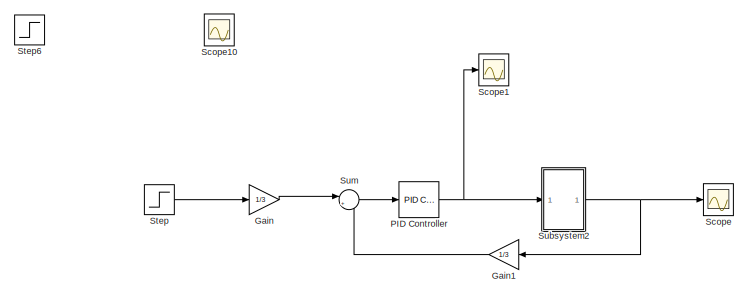
[diagram: root canvas - part 1/3, full width, top band]
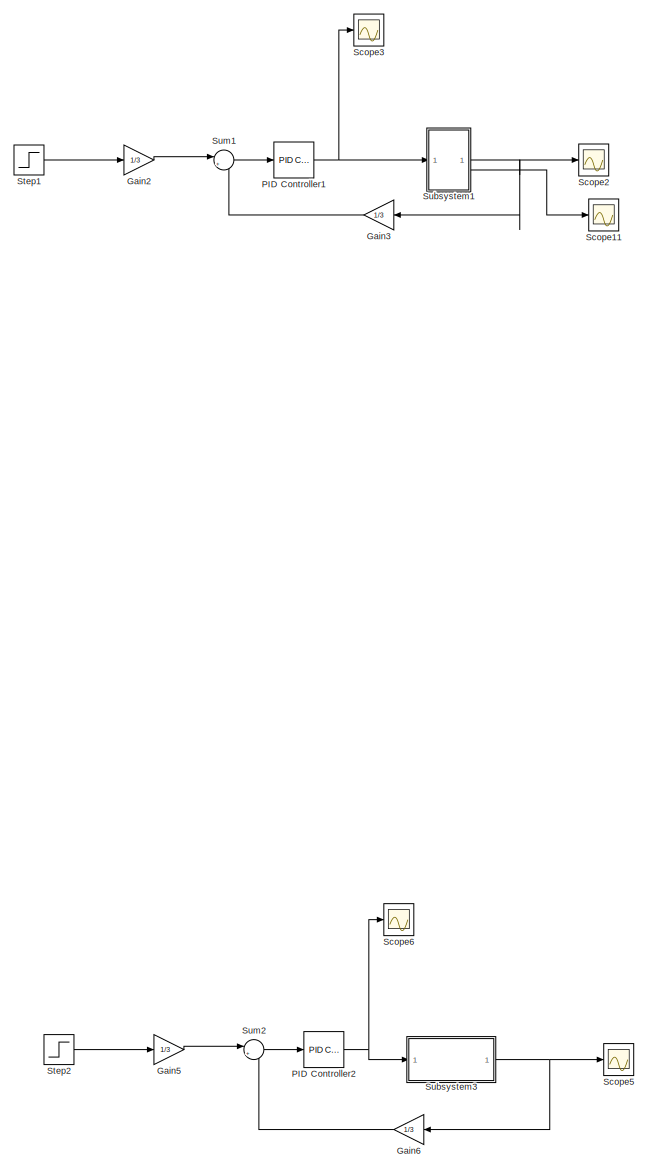
[diagram: root canvas - part 2/3, full width, middle band]
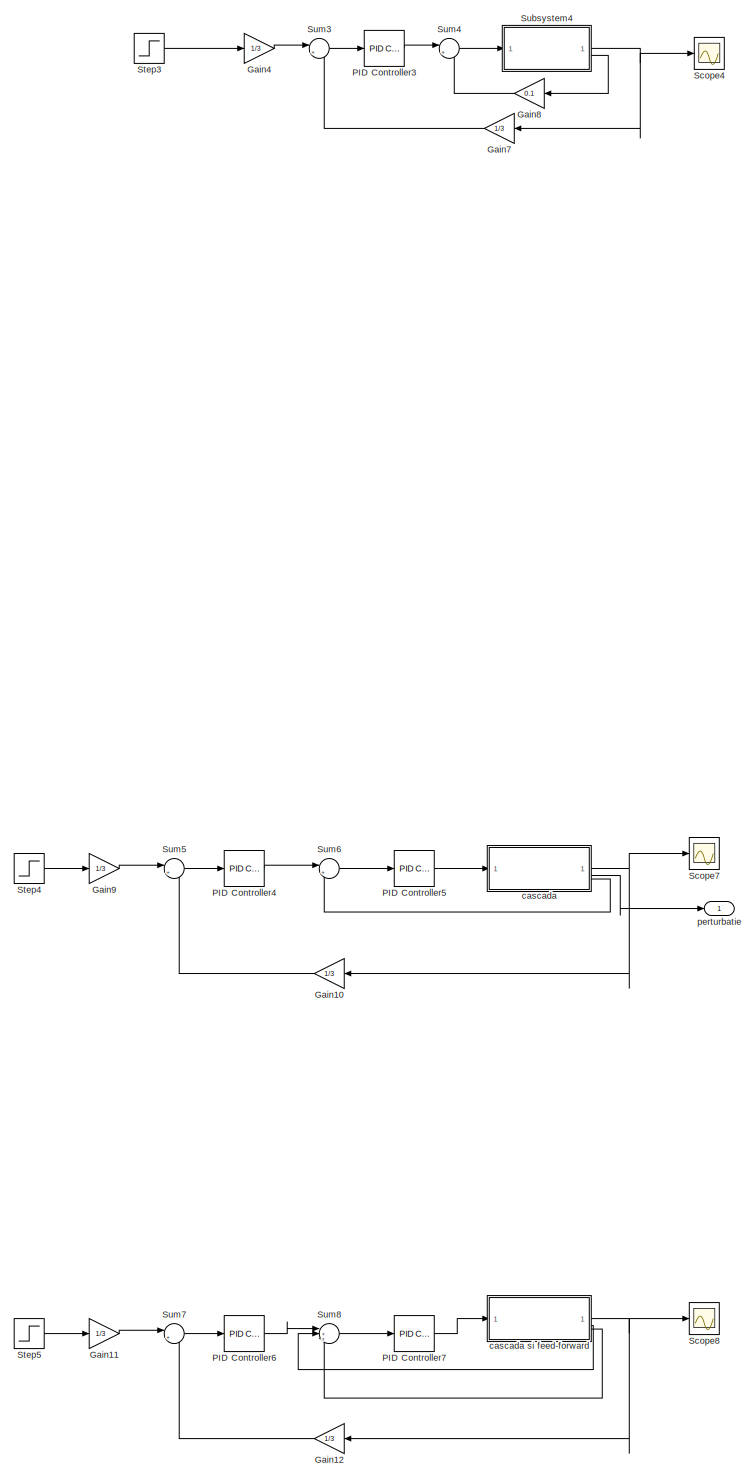
[diagram: root canvas - part 3/3, full width, bottom band]
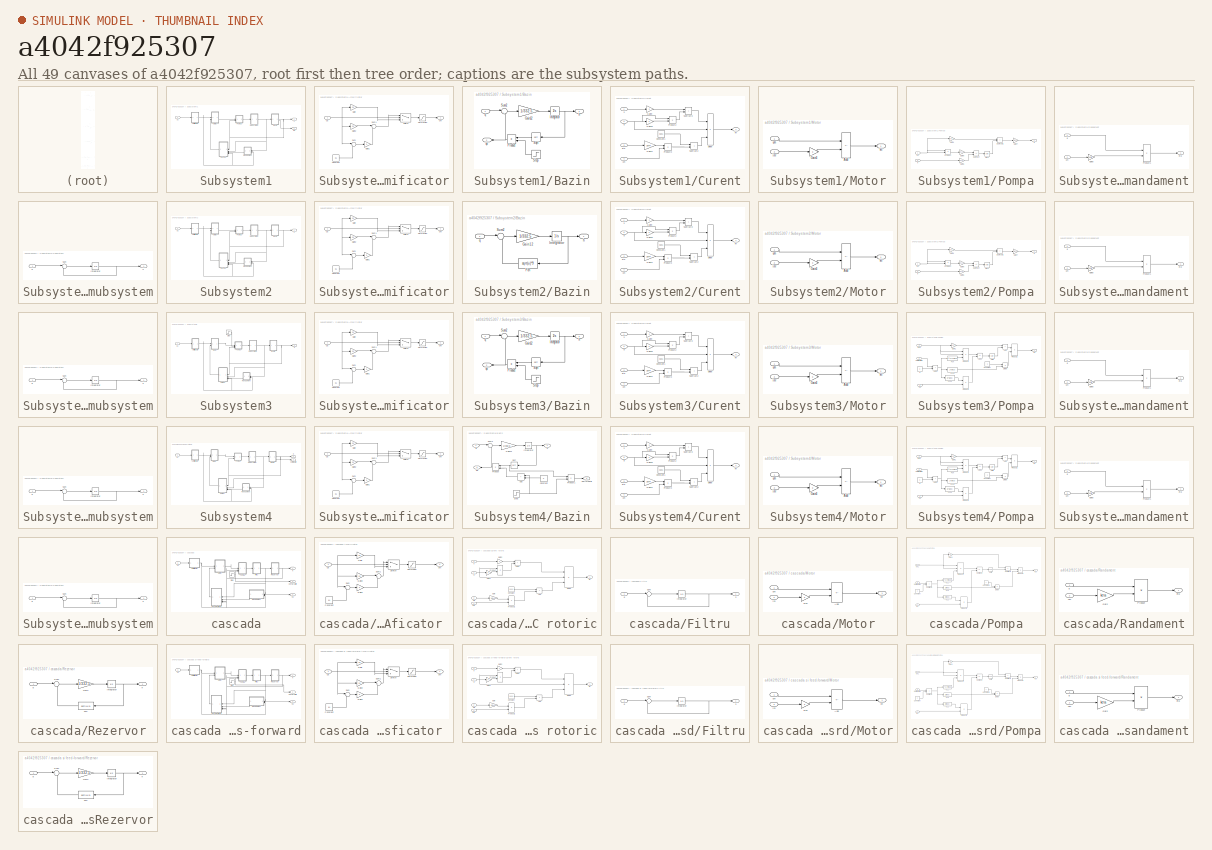
[diagram: thumbnail index - all 49 canvases of the model, root first then tree order]
MODEL slx_a4042f925307
KIND model
CONFIG AbsTol = auto
CONFIG EnableMultiTasking = off
CONFIG FixedStep = 0.01
CONFIG MaxStep = auto
CONFIG MinStep = auto
CONFIG RelTol = 1e-3
CONFIG SampleTimeConstraint = Unconstrained
CONFIG SolverName = FixedStepAuto
CONFIG StartTime = 0.0
CONFIG StopTime = 1000
BLOCK [Gain] Gain
  Gain = 1/3
BLOCK [Gain] Gain1
  Gain = 1/3
  NameLocation = top
BLOCK [Gain] Gain10
  Gain = 1/3
BLOCK [Gain] Gain11
  Gain = 1/3
BLOCK [Gain] Gain12
  Gain = 1/3
BLOCK [Gain] Gain2
  Gain = 1/3
BLOCK [Gain] Gain3
  Gain = 1/3
  NameLocation = top
BLOCK [Gain] Gain4
  Gain = 1/3
BLOCK [Gain] Gain5
  Gain = 1/3
BLOCK [Gain] Gain6
  Gain = 1/3
  NameLocation = top
BLOCK [Gain] Gain7
  Gain = 1/3
  NameLocation = top
BLOCK [Gain] Gain8
  Gain = 0.1
  NameLocation = top
BLOCK [Gain] Gain9
  Gain = 1/3
BLOCK [Reference] PID Controller  REF=slpidlib/PID Controller
  LibrarySourceBlock = simulink/Continuous/PID Controller
  SourceBlock = slpidlib/PID Controller
  SourceType = PID 1dof
BLOCK [Reference] PID Controller1  REF=slpidlib/PID Controller
  LibrarySourceBlock = simulink/Continuous/PID Controller
  SourceBlock = slpidlib/PID Controller
  SourceType = PID 1dof
BLOCK [Reference] PID Controller2  REF=slpidlib/PID Controller
  LibrarySourceBlock = simulink/Continuous/PID Controller
  SourceBlock = slpidlib/PID Controller
  SourceType = PID 1dof
BLOCK [Reference] PID Controller3  REF=slpidlib/PID Controller
  LibrarySourceBlock = simulink/Continuous/PID Controller
  SourceBlock = slpidlib/PID Controller
  SourceType = PID 1dof
BLOCK [Reference] PID Controller4  REF=slpidlib/PID Controller
  SourceBlock = slpidlib/PID Controller
  SourceType = PID 1dof
BLOCK [Reference] PID Controller5  REF=slpidlib/PID Controller
  SourceBlock = slpidlib/PID Controller
  SourceType = PID 1dof
BLOCK [Reference] PID Controller6  REF=slpidlib/PID Controller
  SourceBlock = slpidlib/PID Controller
  SourceType = PID 1dof
BLOCK [Reference] PID Controller7  REF=slpidlib/PID Controller
  SourceBlock = slpidlib/PID Controller
  SourceType = PID 1dof
BLOCK [Scope] Scope
  Floating = off
  NumInputPorts = 1
  ScopeSpecificationString = Simulink.scopes.TimeScopeBlockCfg('CurrentConfiguration', extmgr.ConfigurationSet(extmgr.Configuration('Core','General UI',true),extmgr.Configuration('Core','Source UI',true),extmgr.Configuration('Sources','WiredSimulink',true),extmgr.Configuration('Visuals','Time Domain',true,'SerializedDisplays',{struct('MinYLimReal','10.1875','MaxYLimReal','13.31251','YLabelReal','','MinYLimMag','10.1875','MaxY...<+1363ch>
BLOCK [Scope] Scope1
  Floating = off
  NumInputPorts = 1
  ScopeSpecificationString = Simulink.scopes.TimeScopeBlockCfg('CurrentConfiguration', extmgr.ConfigurationSet(extmgr.Configuration('Core','General UI',true),extmgr.Configuration('Core','Source UI',true),extmgr.Configuration('Sources','WiredSimulink',true,'DataLoggingVariableName','ScopeData1'),extmgr.Configuration('Visuals','Time Domain',true,'SerializedDisplays',{struct('MinYLimReal','5.31048','MaxYLimReal','7.18472','YLabe...<+1371ch>
BLOCK [Scope] Scope10
  Floating = off
  NumInputPorts = 1
  ScopeSpecificationString = Simulink.scopes.TimeScopeBlockCfg('CurrentConfiguration', extmgr.ConfigurationSet(extmgr.Configuration('Core','General UI',true),extmgr.Configuration('Core','Source UI',true),extmgr.Configuration('Sources','WiredSimulink',true,'DataLoggingVariableName','ScopeData1'),extmgr.Configuration('Visuals','Time Domain',true,'SerializedDisplays',{struct('MinYLimReal','-1.00000','MaxYLimReal','1.00000','YLab...<+1403ch>
BLOCK [Scope] Scope11
  Floating = off
  NumInputPorts = 1
  ScopeSpecificationString = Simulink.scopes.TimeScopeBlockCfg('CurrentConfiguration', extmgr.ConfigurationSet(extmgr.Configuration('Core','General UI',true),extmgr.Configuration('Core','Source UI',true),extmgr.Configuration('Sources','WiredSimulink',true,'DataLoggingVariableName','ScopeData2'),extmgr.Configuration('Visuals','Time Domain',true,'SerializedDisplays',{struct('MinYLimReal','27.85174','MaxYLimReal','40.96768','YLa...<+1377ch>
BLOCK [Scope] Scope2
  Floating = off
  NumInputPorts = 1
  ScopeSpecificationString = Simulink.scopes.TimeScopeBlockCfg('CurrentConfiguration', extmgr.ConfigurationSet(extmgr.Configuration('Core','General UI',true),extmgr.Configuration('Core','Source UI',true),extmgr.Configuration('Sources','WiredSimulink',true,'DataLoggingVariableName','ScopeData3'),extmgr.Configuration('Visuals','Time Domain',true,'SerializedDisplays',{struct('MinYLimReal','10.18792','MaxYLimReal','13.30872','YLa...<+1411ch>
BLOCK [Scope] Scope3
  Floating = off
  NumInputPorts = 1
  ScopeSpecificationString = Simulink.scopes.TimeScopeBlockCfg('CurrentConfiguration', extmgr.ConfigurationSet(extmgr.Configuration('Core','General UI',true),extmgr.Configuration('Core','Source UI',true),extmgr.Configuration('Sources','WiredSimulink',true,'DataLoggingVariableName','ScopeData4'),extmgr.Configuration('Visuals','Time Domain',true,'SerializedDisplays',{struct('MinYLimReal','5.31248','MaxYLimReal','7.1845','YLabel...<+1368ch>
BLOCK [Scope] Scope4
  Floating = off
  NumInputPorts = 1
  ScopeSpecificationString = Simulink.scopes.TimeScopeBlockCfg('CurrentConfiguration', extmgr.ConfigurationSet(extmgr.Configuration('Core','General UI',true),extmgr.Configuration('Core','Source UI',true),extmgr.Configuration('Sources','WiredSimulink',true,'DataLoggingVariableName','ScopeData5'),extmgr.Configuration('Visuals','Time Domain',true,'SerializedDisplays',{struct('MinYLimReal','10.18349','MaxYLimReal','13.34861','YLa...<+1419ch>
BLOCK [Scope] Scope5
  Floating = off
  NumInputPorts = 1
  ScopeSpecificationString = Simulink.scopes.TimeScopeBlockCfg('CurrentConfiguration', extmgr.ConfigurationSet(extmgr.Configuration('Core','General UI',true),extmgr.Configuration('Core','Source UI',true),extmgr.Configuration('Sources','WiredSimulink',true,'DataLoggingVariableName','ScopeData6'),extmgr.Configuration('Visuals','Time Domain',true,'SerializedDisplays',{struct('MinYLimReal','10.18792','MaxYLimReal','13.30872','YLa...<+1419ch>
BLOCK [Scope] Scope6
  Floating = off
  NumInputPorts = 1
  ScopeSpecificationString = Simulink.scopes.TimeScopeBlockCfg('CurrentConfiguration', extmgr.ConfigurationSet(extmgr.Configuration('Core','General UI',true),extmgr.Configuration('Core','Source UI',true),extmgr.Configuration('Sources','WiredSimulink',true,'DataLoggingVariableName','ScopeData7'),extmgr.Configuration('Visuals','Time Domain',true,'SerializedDisplays',{struct('MinYLimReal','5.31248','MaxYLimReal','7.1845','YLabel...<+1397ch>
BLOCK [Scope] Scope7
  Floating = off
  NumInputPorts = 1
  ScopeSpecificationString = Simulink.scopes.TimeScopeBlockCfg('CurrentConfiguration', extmgr.ConfigurationSet(extmgr.Configuration('Core','General UI',true),extmgr.Configuration('Core','Source UI',true),extmgr.Configuration('Sources','WiredSimulink',true,'DataLoggingVariableName','ScopeData8'),extmgr.Configuration('Visuals','Time Domain',true,'SerializedDisplays',{struct('MinYLimReal','10.18674','MaxYLimReal','13.31932','YLa...<+1374ch>
BLOCK [Scope] Scope8
  Floating = off
  NumInputPorts = 1
  ScopeSpecificationString = Simulink.scopes.TimeScopeBlockCfg('CurrentConfiguration', extmgr.ConfigurationSet(extmgr.Configuration('Core','General UI',true),extmgr.Configuration('Core','Source UI',true),extmgr.Configuration('Sources','WiredSimulink',true,'DataLoggingVariableName','ScopeData9'),extmgr.Configuration('Visuals','Time Domain',true,'SerializedDisplays',{struct('MinYLimReal','12.88565','MaxYLimReal','13.17908','YLa...<+1434ch>
BLOCK [Step] Step
  After = 13
  Before = 10.5
  SampleTime = 0
  Time = 0
BLOCK [Step] Step1
  After = 13
  Before = 10.5
  SampleTime = 0
  Time = 0
BLOCK [Step] Step2
  After = 13
  Before = 10.5
  SampleTime = 0
  Time = 0
BLOCK [Step] Step3
  After = 13
  Before = 10.5
  SampleTime = 0
  Time = 0
BLOCK [Step] Step4
  After = 13
  Before = 10.51
  SampleTime = 0
BLOCK [Step] Step5
  After = 13
  Before = 10.51
  SampleTime = 0
BLOCK [Step] Step6
  After = 5.5
  Before = 5
  SampleTime = 0
  Time = 0
BLOCK [SubSystem] Subsystem1
BLOCK [SubSystem] Subsystem1/Amplificator
BLOCK [Constant] Subsystem1/Amplificator/Constant
  Value = 8.1
BLOCK [Gain] Subsystem1/Amplificator/Gain
  Gain = 2.2
BLOCK [Gain] Subsystem1/Amplificator/Gain1
  Gain = 5
BLOCK [Gain] Subsystem1/Amplificator/Gain2
  Gain = 2.2
BLOCK [Saturate] Subsystem1/Amplificator/Saturation
  LowerLimit = 0
  UpperLimit = 22
BLOCK [Sum] Subsystem1/Amplificator/Sum
  Inputs = |+-
BLOCK [Sum] Subsystem1/Amplificator/Sum1
  Inputs = |++
BLOCK [Switch] Subsystem1/Amplificator/Switch
  InputSameDT = off
  SaturateOnIntegerOverflow = off
  Threshold = 8.1
BLOCK [Inport] Subsystem1/Amplificator/ua
BLOCK [Outport] Subsystem1/Amplificator/um
BLOCK [SubSystem] Subsystem1/Bazin
BLOCK [Gain] Subsystem1/Bazin/Gain12
  Gain = 1/332.5
BLOCK [Integrator] Subsystem1/Bazin/Integrator
  InitialCondition = 10.5
BLOCK [Product] Subsystem1/Bazin/Product
  NameLocation = top
BLOCK [Sqrt] Subsystem1/Bazin/Sqrt
  NameLocation = top
BLOCK [Step] Subsystem1/Bazin/Step
  After = 11
  Before = 9
  NameLocation = top
  SampleTime = 0
  Time = 250
BLOCK [Sum] Subsystem1/Bazin/Sum2
  Inputs = |+-
BLOCK [Outport] Subsystem1/Bazin/h
BLOCK [Inport] Subsystem1/Bazin/q
BLOCK [Outport] Subsystem1/Bazin/qe
  NameLocation = top
  Port = 2
BLOCK [SubSystem] Subsystem1/Curent
BLOCK [Constant] Subsystem1/Curent/Constant1
  Value = 0.001
BLOCK [Product] Subsystem1/Curent/Divide
  Inputs = **/
BLOCK [Gain] Subsystem1/Curent/Gain10
  Gain = k
BLOCK [Gain] Subsystem1/Curent/Gain11
  Gain = 1e+4
BLOCK [Gain] Subsystem1/Curent/Gain9
  Gain = 2
BLOCK [Product] Subsystem1/Curent/Product2
BLOCK [Product] Subsystem1/Curent/Product3
BLOCK [Sum] Subsystem1/Curent/Subtract2
  IconShape = rectangular
BLOCK [Sum] Subsystem1/Curent/Subtract3
  IconShape = rectangular
BLOCK [Inport] Subsystem1/Curent/eta
  Port = 3
BLOCK [Inport] Subsystem1/Curent/h
BLOCK [Outport] Subsystem1/Curent/im
BLOCK [Inport] Subsystem1/Curent/q
  Port = 2
BLOCK [Inport] Subsystem1/Curent/um
  Port = 4
BLOCK [SubSystem] Subsystem1/Motor
BLOCK [Sum] Subsystem1/Motor/Add
  IconShape = rectangular
  Inputs = +-
BLOCK [Gain] Subsystem1/Motor/Gain3
  Gain = 3
BLOCK [Inport] Subsystem1/Motor/im
  Port = 2
BLOCK [Outport] Subsystem1/Motor/kn
BLOCK [Inport] Subsystem1/Motor/um
BLOCK [SubSystem] Subsystem1/Pompa
BLOCK [Gain] Subsystem1/Pompa/Gain4
  Gain = k2
BLOCK [Gain] Subsystem1/Pompa/Gain5
  Gain = k11
BLOCK [Gain] Subsystem1/Pompa/Gain6
  Gain = k12
BLOCK [Gain] Subsystem1/Pompa/Gain7
  Gain = 1/k13
BLOCK [Product] Subsystem1/Pompa/Product
BLOCK [Sqrt] Subsystem1/Pompa/Sqrt
BLOCK [Sum] Subsystem1/Pompa/Subtract
  IconShape = rectangular
  Inputs = +-
BLOCK [Sum] Subsystem1/Pompa/Subtract1
  IconShape = rectangular
BLOCK [Inport] Subsystem1/Pompa/h
  Port = 2
BLOCK [Inport] Subsystem1/Pompa/kn
BLOCK [Outport] Subsystem1/Pompa/q
BLOCK [SubSystem] Subsystem1/Randament
BLOCK [Gain] Subsystem1/Randament/Gain8
  Gain = keta
BLOCK [Product] Subsystem1/Randament/Product1
BLOCK [Outport] Subsystem1/Randament/eta
BLOCK [Inport] Subsystem1/Randament/q
BLOCK [Inport] Subsystem1/Randament/um
  Port = 2
BLOCK [SubSystem] Subsystem1/Subsystem
BLOCK [Integrator] Subsystem1/Subsystem/Integrator
  InitialCondition = 29.2
BLOCK [Sum] Subsystem1/Subsystem/Sum
  Inputs = |+-
BLOCK [Outport] Subsystem1/Subsystem/h
BLOCK [Inport] Subsystem1/Subsystem/q
BLOCK [Outport] Subsystem1/h
BLOCK [Outport] Subsystem1/qe
  Port = 2
BLOCK [Inport] Subsystem1/uc
BLOCK [SubSystem] Subsystem2
BLOCK [SubSystem] Subsystem2/Amplificator
BLOCK [Constant] Subsystem2/Amplificator/Constant
  Value = 8.1
BLOCK [Gain] Subsystem2/Amplificator/Gain
  Gain = 2.2
BLOCK [Gain] Subsystem2/Amplificator/Gain1
  Gain = 5
BLOCK [Gain] Subsystem2/Amplificator/Gain2
  Gain = 2.2
BLOCK [Saturate] Subsystem2/Amplificator/Saturation
  LowerLimit = 0
  UpperLimit = 22
BLOCK [Sum] Subsystem2/Amplificator/Sum
  Inputs = |+-
BLOCK [Sum] Subsystem2/Amplificator/Sum1
  Inputs = |++
BLOCK [Switch] Subsystem2/Amplificator/Switch
  InputSameDT = off
  SaturateOnIntegerOverflow = off
  Threshold = 8.1
BLOCK [Inport] Subsystem2/Amplificator/ua
BLOCK [Outport] Subsystem2/Amplificator/um
BLOCK [SubSystem] Subsystem2/Bazin
BLOCK [Fcn] Subsystem2/Bazin/Fcn
  Expr = sqrt(u)*9
BLOCK [Gain] Subsystem2/Bazin/Gain12
  Gain = 1/332.5
BLOCK [Integrator] Subsystem2/Bazin/Integrator
  InitialCondition = 10.5
BLOCK [Sum] Subsystem2/Bazin/Sum2
  Inputs = |+-
BLOCK [Outport] Subsystem2/Bazin/h
BLOCK [Inport] Subsystem2/Bazin/q
BLOCK [SubSystem] Subsystem2/Curent
BLOCK [Constant] Subsystem2/Curent/Constant1
  Value = 0.001
BLOCK [Product] Subsystem2/Curent/Divide
  Inputs = **/
BLOCK [Gain] Subsystem2/Curent/Gain10
  Gain = k
BLOCK [Gain] Subsystem2/Curent/Gain11
  Gain = 1e+4
BLOCK [Gain] Subsystem2/Curent/Gain9
  Gain = 2
BLOCK [Product] Subsystem2/Curent/Product2
BLOCK [Product] Subsystem2/Curent/Product3
BLOCK [Sum] Subsystem2/Curent/Subtract2
  IconShape = rectangular
BLOCK [Sum] Subsystem2/Curent/Subtract3
  IconShape = rectangular
BLOCK [Inport] Subsystem2/Curent/eta
  Port = 3
BLOCK [Inport] Subsystem2/Curent/h
BLOCK [Outport] Subsystem2/Curent/im
BLOCK [Inport] Subsystem2/Curent/q
  Port = 2
BLOCK [Inport] Subsystem2/Curent/um
  Port = 4
BLOCK [SubSystem] Subsystem2/Motor
BLOCK [Sum] Subsystem2/Motor/Add
  IconShape = rectangular
  Inputs = +-
BLOCK [Gain] Subsystem2/Motor/Gain3
  Gain = 3
BLOCK [Inport] Subsystem2/Motor/im
  Port = 2
BLOCK [Outport] Subsystem2/Motor/kn
BLOCK [Inport] Subsystem2/Motor/um
BLOCK [SubSystem] Subsystem2/Pompa
BLOCK [Gain] Subsystem2/Pompa/Gain4
  Gain = k2
BLOCK [Gain] Subsystem2/Pompa/Gain5
  Gain = k11
BLOCK [Gain] Subsystem2/Pompa/Gain6
  Gain = k12
BLOCK [Gain] Subsystem2/Pompa/Gain7
  Gain = 1/k13
BLOCK [Product] Subsystem2/Pompa/Product
BLOCK [Sqrt] Subsystem2/Pompa/Sqrt
BLOCK [Sum] Subsystem2/Pompa/Subtract
  IconShape = rectangular
  Inputs = +-
BLOCK [Sum] Subsystem2/Pompa/Subtract1
  IconShape = rectangular
BLOCK [Inport] Subsystem2/Pompa/h
  Port = 2
BLOCK [Inport] Subsystem2/Pompa/kn
BLOCK [Outport] Subsystem2/Pompa/q
BLOCK [SubSystem] Subsystem2/Randament
BLOCK [Gain] Subsystem2/Randament/Gain8
  Gain = keta
BLOCK [Product] Subsystem2/Randament/Product1
BLOCK [Outport] Subsystem2/Randament/eta
BLOCK [Inport] Subsystem2/Randament/q
BLOCK [Inport] Subsystem2/Randament/um
  Port = 2
BLOCK [SubSystem] Subsystem2/Subsystem
BLOCK [Integrator] Subsystem2/Subsystem/Integrator
  InitialCondition = 29.2
BLOCK [Sum] Subsystem2/Subsystem/Sum
  Inputs = |+-
BLOCK [Outport] Subsystem2/Subsystem/h
BLOCK [Inport] Subsystem2/Subsystem/q
BLOCK [Outport] Subsystem2/h
BLOCK [Inport] Subsystem2/uc
BLOCK [SubSystem] Subsystem3
BLOCK [SubSystem] Subsystem3/Amplificator
BLOCK [Constant] Subsystem3/Amplificator/Constant
  Value = 8.1
BLOCK [Gain] Subsystem3/Amplificator/Gain
  Gain = 2.2
BLOCK [Gain] Subsystem3/Amplificator/Gain1
  Gain = 5
BLOCK [Gain] Subsystem3/Amplificator/Gain2
  Gain = 2.2
BLOCK [Saturate] Subsystem3/Amplificator/Saturation
  LowerLimit = 0
  UpperLimit = 22
BLOCK [Sum] Subsystem3/Amplificator/Sum
  Inputs = |+-
BLOCK [Sum] Subsystem3/Amplificator/Sum1
  Inputs = |++
BLOCK [Switch] Subsystem3/Amplificator/Switch
  InputSameDT = off
  SaturateOnIntegerOverflow = off
  Threshold = 8.1
BLOCK [Inport] Subsystem3/Amplificator/ua
BLOCK [Outport] Subsystem3/Amplificator/um
BLOCK [SubSystem] Subsystem3/Bazin
BLOCK [Gain] Subsystem3/Bazin/Gain12
  Gain = 1/332.5
BLOCK [Integrator] Subsystem3/Bazin/Integrator
  InitialCondition = 10.5
BLOCK [Product] Subsystem3/Bazin/Product
  NameLocation = top
BLOCK [Sqrt] Subsystem3/Bazin/Sqrt
  NameLocation = top
BLOCK [Step] Subsystem3/Bazin/Step
  After = 11
  Before = 9
  NameLocation = top
  SampleTime = 0
  Time = 250
BLOCK [Sum] Subsystem3/Bazin/Sum2
  Inputs = |+-
BLOCK [Outport] Subsystem3/Bazin/h
BLOCK [Inport] Subsystem3/Bazin/q
BLOCK [Outport] Subsystem3/Bazin/qe
  NameLocation = top
  Port = 2
BLOCK [SubSystem] Subsystem3/Curent
BLOCK [Constant] Subsystem3/Curent/Constant1
  Value = 0.001
BLOCK [Product] Subsystem3/Curent/Divide
  Inputs = **/
BLOCK [Gain] Subsystem3/Curent/Gain10
  Gain = k
BLOCK [Gain] Subsystem3/Curent/Gain11
  Gain = 1e+4
BLOCK [Gain] Subsystem3/Curent/Gain9
  Gain = 2
BLOCK [Product] Subsystem3/Curent/Product2
BLOCK [Product] Subsystem3/Curent/Product3
BLOCK [Sum] Subsystem3/Curent/Subtract2
  IconShape = rectangular
BLOCK [Sum] Subsystem3/Curent/Subtract3
  IconShape = rectangular
BLOCK [Inport] Subsystem3/Curent/eta
  Port = 3
BLOCK [Inport] Subsystem3/Curent/h
BLOCK [Outport] Subsystem3/Curent/im
BLOCK [Inport] Subsystem3/Curent/q
  Port = 2
BLOCK [Inport] Subsystem3/Curent/um
  Port = 4
BLOCK [SubSystem] Subsystem3/Motor
BLOCK [Sum] Subsystem3/Motor/Add
  IconShape = rectangular
  Inputs = +-
BLOCK [Gain] Subsystem3/Motor/Gain3
  Gain = 3
BLOCK [Inport] Subsystem3/Motor/im
  Port = 2
BLOCK [Outport] Subsystem3/Motor/kn
BLOCK [Inport] Subsystem3/Motor/um
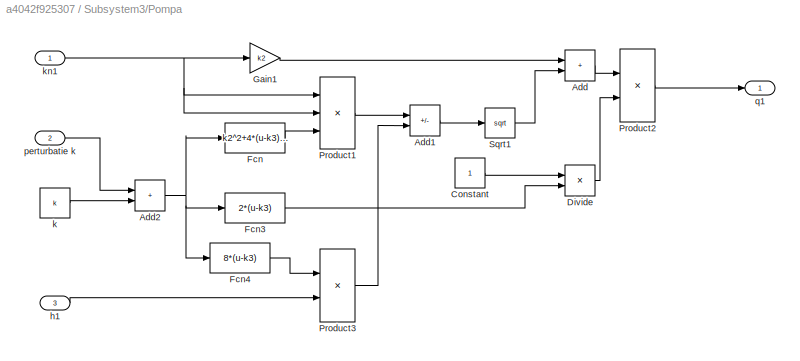
BLOCK [SubSystem] Subsystem3/Pompa
BLOCK [Sum] Subsystem3/Pompa/Add
  IconShape = rectangular
BLOCK [Sum] Subsystem3/Pompa/Add1
  IconShape = rectangular
  Inputs = +-
BLOCK [Sum] Subsystem3/Pompa/Add2
  IconShape = rectangular
BLOCK [Constant] Subsystem3/Pompa/Constant
BLOCK [Product] Subsystem3/Pompa/Divide
  Inputs = */
BLOCK [Fcn] Subsystem3/Pompa/Fcn
  Expr = k2^2+4*(u-k3)*k1
BLOCK [Fcn] Subsystem3/Pompa/Fcn3
  Expr = 2*(u-k3)
BLOCK [Fcn] Subsystem3/Pompa/Fcn4
  Expr = 8*(u-k3)
BLOCK [Gain] Subsystem3/Pompa/Gain1
  Gain = k2
BLOCK [Product] Subsystem3/Pompa/Product1
  Inputs = 3
BLOCK [Product] Subsystem3/Pompa/Product2
BLOCK [Product] Subsystem3/Pompa/Product3
BLOCK [Sqrt] Subsystem3/Pompa/Sqrt1
BLOCK [Inport] Subsystem3/Pompa/h1
  Port = 3
BLOCK [Constant] Subsystem3/Pompa/k
  Value = k
BLOCK [Inport] Subsystem3/Pompa/kn1
BLOCK [Inport] Subsystem3/Pompa/perturbatie k
  Port = 2
BLOCK [Outport] Subsystem3/Pompa/q1
BLOCK [SubSystem] Subsystem3/Randament
BLOCK [Gain] Subsystem3/Randament/Gain8
  Gain = keta
BLOCK [Product] Subsystem3/Randament/Product1
BLOCK [Outport] Subsystem3/Randament/eta
BLOCK [Inport] Subsystem3/Randament/q
BLOCK [Inport] Subsystem3/Randament/um
  Port = 2
BLOCK [Step] Subsystem3/Step
  After = 0.01
  SampleTime = 0
  Time = 250
BLOCK [SubSystem] Subsystem3/Subsystem
BLOCK [Integrator] Subsystem3/Subsystem/Integrator
  InitialCondition = 29.2
BLOCK [Sum] Subsystem3/Subsystem/Sum
  Inputs = |+-
BLOCK [Outport] Subsystem3/Subsystem/h
BLOCK [Inport] Subsystem3/Subsystem/q
BLOCK [Outport] Subsystem3/h
BLOCK [Inport] Subsystem3/uc
BLOCK [SubSystem] Subsystem4
BLOCK [SubSystem] Subsystem4/Amplificator
BLOCK [Constant] Subsystem4/Amplificator/Constant
  Value = 8.1
BLOCK [Gain] Subsystem4/Amplificator/Gain
  Gain = 2.2
BLOCK [Gain] Subsystem4/Amplificator/Gain1
  Gain = 5
BLOCK [Gain] Subsystem4/Amplificator/Gain2
  Gain = 2.2
BLOCK [Saturate] Subsystem4/Amplificator/Saturation
  LowerLimit = 0
  UpperLimit = 22
BLOCK [Sum] Subsystem4/Amplificator/Sum
  Inputs = |+-
BLOCK [Sum] Subsystem4/Amplificator/Sum1
  Inputs = |++
BLOCK [Switch] Subsystem4/Amplificator/Switch
  InputSameDT = off
  SaturateOnIntegerOverflow = off
  Threshold = 8.1
BLOCK [Inport] Subsystem4/Amplificator/ua
BLOCK [Outport] Subsystem4/Amplificator/um
BLOCK [SubSystem] Subsystem4/Bazin
BLOCK [Sum] Subsystem4/Bazin/Add
  IconShape = rectangular
  NameLocation = top
BLOCK [Constant] Subsystem4/Bazin/Constant
  NameLocation = top
  Value = C
BLOCK [Gain] Subsystem4/Bazin/Gain12
  Gain = 1/332.5
BLOCK [Integrator] Subsystem4/Bazin/Integrator
  InitialCondition = 10.5
BLOCK [Product] Subsystem4/Bazin/Product
  NameLocation = top
BLOCK [Product] Subsystem4/Bazin/Product1
BLOCK [Sqrt] Subsystem4/Bazin/Sqrt
  NameLocation = top
BLOCK [Step] Subsystem4/Bazin/Step
  After = 2
  SampleTime = 0
  Time = 500
BLOCK [Sum] Subsystem4/Bazin/Sum2
  Inputs = |+-
BLOCK [Outport] Subsystem4/Bazin/h
BLOCK [Outport] Subsystem4/Bazin/perturbatie
  Port = 3
BLOCK [Inport] Subsystem4/Bazin/q
BLOCK [Outport] Subsystem4/Bazin/qe
  NameLocation = top
  Port = 2
BLOCK [SubSystem] Subsystem4/Curent
BLOCK [Constant] Subsystem4/Curent/Constant1
  Value = 0.001
BLOCK [Product] Subsystem4/Curent/Divide
  Inputs = **/
BLOCK [Gain] Subsystem4/Curent/Gain10
  Gain = k
BLOCK [Gain] Subsystem4/Curent/Gain11
  Gain = 1e+4
BLOCK [Gain] Subsystem4/Curent/Gain9
  Gain = 2
BLOCK [Product] Subsystem4/Curent/Product2
BLOCK [Product] Subsystem4/Curent/Product3
BLOCK [Sum] Subsystem4/Curent/Subtract2
  IconShape = rectangular
BLOCK [Sum] Subsystem4/Curent/Subtract3
  IconShape = rectangular
BLOCK [Inport] Subsystem4/Curent/eta
  Port = 3
BLOCK [Inport] Subsystem4/Curent/h
BLOCK [Outport] Subsystem4/Curent/im
BLOCK [Inport] Subsystem4/Curent/q
  Port = 2
BLOCK [Inport] Subsystem4/Curent/um
  Port = 4
BLOCK [SubSystem] Subsystem4/Motor
BLOCK [Sum] Subsystem4/Motor/Add
  IconShape = rectangular
  Inputs = +-
BLOCK [Gain] Subsystem4/Motor/Gain3
  Gain = 3
BLOCK [Inport] Subsystem4/Motor/im
  Port = 2
BLOCK [Outport] Subsystem4/Motor/kn
BLOCK [Inport] Subsystem4/Motor/um
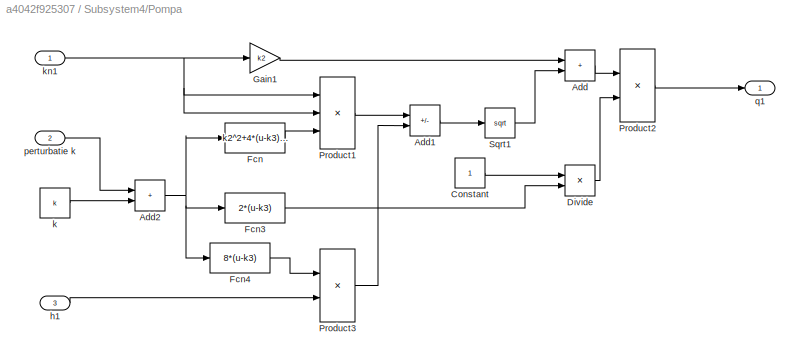
BLOCK [SubSystem] Subsystem4/Pompa
BLOCK [Sum] Subsystem4/Pompa/Add
  IconShape = rectangular
BLOCK [Sum] Subsystem4/Pompa/Add1
  IconShape = rectangular
  Inputs = +-
BLOCK [Sum] Subsystem4/Pompa/Add2
  IconShape = rectangular
BLOCK [Constant] Subsystem4/Pompa/Constant
BLOCK [Product] Subsystem4/Pompa/Divide
  Inputs = */
BLOCK [Fcn] Subsystem4/Pompa/Fcn
  Expr = k2^2+4*(u-k3)*k1
BLOCK [Fcn] Subsystem4/Pompa/Fcn3
  Expr = 2*(u-k3)
BLOCK [Fcn] Subsystem4/Pompa/Fcn4
  Expr = 8*(u-k3)
BLOCK [Gain] Subsystem4/Pompa/Gain1
  Gain = k2
BLOCK [Product] Subsystem4/Pompa/Product1
  Inputs = 3
BLOCK [Product] Subsystem4/Pompa/Product2
BLOCK [Product] Subsystem4/Pompa/Product3
BLOCK [Sqrt] Subsystem4/Pompa/Sqrt1
BLOCK [Inport] Subsystem4/Pompa/h1
  Port = 3
BLOCK [Constant] Subsystem4/Pompa/k
  Value = k
BLOCK [Inport] Subsystem4/Pompa/kn1
BLOCK [Inport] Subsystem4/Pompa/perturbatie k
  Port = 2
BLOCK [Outport] Subsystem4/Pompa/q1
BLOCK [SubSystem] Subsystem4/Randament
BLOCK [Gain] Subsystem4/Randament/Gain8
  Gain = keta
BLOCK [Product] Subsystem4/Randament/Product1
BLOCK [Outport] Subsystem4/Randament/eta
BLOCK [Inport] Subsystem4/Randament/q
BLOCK [Inport] Subsystem4/Randament/um
  Port = 2
BLOCK [SubSystem] Subsystem4/Subsystem
BLOCK [Integrator] Subsystem4/Subsystem/Integrator
  InitialCondition = 29.2
BLOCK [Sum] Subsystem4/Subsystem/Sum
  Inputs = |+-
BLOCK [Outport] Subsystem4/Subsystem/h
BLOCK [Inport] Subsystem4/Subsystem/q
BLOCK [Outport] Subsystem4/h
BLOCK [Outport] Subsystem4/perturbatie
  Port = 2
BLOCK [Inport] Subsystem4/uc
BLOCK [Sum] Sum
  Inputs = |+-
BLOCK [Sum] Sum1
  Inputs = |+-
BLOCK [Sum] Sum2
  Inputs = |+-
BLOCK [Sum] Sum3
  Inputs = |+-
BLOCK [Sum] Sum4
  Inputs = |++
BLOCK [Sum] Sum5
  Inputs = |+-
BLOCK [Sum] Sum6
  Inputs = |+-
BLOCK [Sum] Sum7
  Inputs = |+-
BLOCK [Sum] Sum8
  Inputs = |++-
BLOCK [SubSystem] cascada
BLOCK [SubSystem] cascada si feed-forward
BLOCK [SubSystem] cascada si feed-forward/Amplificator 
BLOCK [Constant] cascada si feed-forward/Amplificator /Constant
  Value = 8.1
BLOCK [Gain] cascada si feed-forward/Amplificator /Gain
  Gain = 2.2
BLOCK [Gain] cascada si feed-forward/Amplificator /Gain1
  Gain = 5
BLOCK [Gain] cascada si feed-forward/Amplificator /Gain2
  Gain = 2.2
BLOCK [Saturate] cascada si feed-forward/Amplificator /Saturation
  LowerLimit = 0
  UpperLimit = 22
BLOCK [Sum] cascada si feed-forward/Amplificator /Sum
  Inputs = |+-
BLOCK [Sum] cascada si feed-forward/Amplificator /Sum1
  Inputs = |++
BLOCK [Switch] cascada si feed-forward/Amplificator /Switch
  InputSameDT = off
  SaturateOnIntegerOverflow = off
  Threshold = 8.1
BLOCK [Inport] cascada si feed-forward/Amplificator /ua
BLOCK [Outport] cascada si feed-forward/Amplificator /um
BLOCK [SubSystem] cascada si feed-forward/Curent rotoric
  NameLocation = top
BLOCK [Sum] cascada si feed-forward/Curent rotoric/Add
  IconShape = rectangular
BLOCK [Sum] cascada si feed-forward/Curent rotoric/Add1
  IconShape = rectangular
BLOCK [Constant] cascada si feed-forward/Curent rotoric/Constant
  Value = 0.001
BLOCK [Product] cascada si feed-forward/Curent rotoric/Divide
  Inputs = **/
BLOCK [Gain] cascada si feed-forward/Curent rotoric/Gain
  Gain = 1e+4
BLOCK [Gain] cascada si feed-forward/Curent rotoric/Gain1
  Gain = k
BLOCK [Gain] cascada si feed-forward/Curent rotoric/Gain2
  Gain = 2
BLOCK [Product] cascada si feed-forward/Curent rotoric/Product
BLOCK [Product] cascada si feed-forward/Curent rotoric/Product1
BLOCK [Inport] cascada si feed-forward/Curent rotoric/eta
  Port = 2
BLOCK [Inport] cascada si feed-forward/Curent rotoric/h
  Port = 3
BLOCK [Outport] cascada si feed-forward/Curent rotoric/im
BLOCK [Inport] cascada si feed-forward/Curent rotoric/q
BLOCK [Inport] cascada si feed-forward/Curent rotoric/um
  Port = 4
BLOCK [SubSystem] cascada si feed-forward/Filtru
BLOCK [Integrator] cascada si feed-forward/Filtru/Integrator
  InitialCondition = 29.2
BLOCK [Sum] cascada si feed-forward/Filtru/Sum
  Inputs = |+-
BLOCK [Outport] cascada si feed-forward/Filtru/h
BLOCK [Inport] cascada si feed-forward/Filtru/q
BLOCK [SubSystem] cascada si feed-forward/Motor
BLOCK [Sum] cascada si feed-forward/Motor/Add
  IconShape = rectangular
  Inputs = +-
BLOCK [Gain] cascada si feed-forward/Motor/Rm 
  Gain = 3
BLOCK [Inport] cascada si feed-forward/Motor/im
  Port = 2
BLOCK [Outport] cascada si feed-forward/Motor/kn
BLOCK [Inport] cascada si feed-forward/Motor/um
BLOCK [SubSystem] cascada si feed-forward/Pompa
BLOCK [Constant] cascada si feed-forward/Pompa/Constant
  Value = k
BLOCK [Constant] cascada si feed-forward/Pompa/Constant1
BLOCK [Product] cascada si feed-forward/Pompa/Divide
  Inputs = */
BLOCK [Gain] cascada si feed-forward/Pompa/Gain4
  Gain = k2
BLOCK [Product] cascada si feed-forward/Pompa/Product1
  Inputs = 3
BLOCK [Product] cascada si feed-forward/Pompa/Product2
BLOCK [Product] cascada si feed-forward/Pompa/Product3
BLOCK [Sqrt] cascada si feed-forward/Pompa/Sqrt1
BLOCK [Sum] cascada si feed-forward/Pompa/Subtract1
  IconShape = rectangular
  Inputs = +-
BLOCK [Sum] cascada si feed-forward/Pompa/Subtract2
  IconShape = rectangular
BLOCK [Sum] cascada si feed-forward/Pompa/Subtract3
  IconShape = rectangular
BLOCK [Inport] cascada si feed-forward/Pompa/h1
  Port = 2
BLOCK [Fcn] cascada si feed-forward/Pompa/k11
  Expr = k2^2+4*(u-k3)*k1
BLOCK [Fcn] cascada si feed-forward/Pompa/k12
  Expr = 8*(u-k3)
BLOCK [Fcn] cascada si feed-forward/Pompa/k13
  Expr = 2*(u-k3)
BLOCK [Inport] cascada si feed-forward/Pompa/kn1
BLOCK [Inport] cascada si feed-forward/Pompa/perturbatie k
  Port = 3
BLOCK [Outport] cascada si feed-forward/Pompa/q1
BLOCK [SubSystem] cascada si feed-forward/Randament
  NameLocation = top
BLOCK [Gain] cascada si feed-forward/Randament/Gain
  Gain = keta
BLOCK [Product] cascada si feed-forward/Randament/Product
BLOCK [Outport] cascada si feed-forward/Randament/eta
BLOCK [Inport] cascada si feed-forward/Randament/q
BLOCK [Inport] cascada si feed-forward/Randament/um
  Port = 2
BLOCK [SubSystem] cascada si feed-forward/Rezervor
BLOCK [Fcn] cascada si feed-forward/Rezervor/Fcn
  Expr = sqrt(u)*9
  NameLocation = top
BLOCK [Gain] cascada si feed-forward/Rezervor/Gain
  Gain = 1/332.5
BLOCK [Integrator] cascada si feed-forward/Rezervor/Integrator
  InitialCondition = 10.5
BLOCK [Sum] cascada si feed-forward/Rezervor/Sum
  Inputs = |+-
BLOCK [Outport] cascada si feed-forward/Rezervor/h
BLOCK [Inport] cascada si feed-forward/Rezervor/q
BLOCK [Step] cascada si feed-forward/Step
  After = -.035
  SampleTime = 0
  Time = 300
BLOCK [Outport] cascada si feed-forward/h 
BLOCK [Outport] cascada si feed-forward/perturbatie
  Port = 2
BLOCK [Outport] cascada si feed-forward/q1
  Port = 3
BLOCK [Inport] cascada si feed-forward/uc
BLOCK [SubSystem] cascada/Amplificator 
BLOCK [Constant] cascada/Amplificator /Constant
  Value = 8.1
BLOCK [Gain] cascada/Amplificator /Gain
  Gain = 2.2
BLOCK [Gain] cascada/Amplificator /Gain1
  Gain = 5
BLOCK [Gain] cascada/Amplificator /Gain2
  Gain = 2.2
BLOCK [Saturate] cascada/Amplificator /Saturation
  LowerLimit = 0
  UpperLimit = 22
BLOCK [Sum] cascada/Amplificator /Sum
  Inputs = |+-
BLOCK [Sum] cascada/Amplificator /Sum1
  Inputs = |++
BLOCK [Switch] cascada/Amplificator /Switch
  InputSameDT = off
  SaturateOnIntegerOverflow = off
  Threshold = 8.1
BLOCK [Inport] cascada/Amplificator /ua
BLOCK [Outport] cascada/Amplificator /um
BLOCK [SubSystem] cascada/Curent rotoric
  NameLocation = top
BLOCK [Sum] cascada/Curent rotoric/Add
  IconShape = rectangular
BLOCK [Sum] cascada/Curent rotoric/Add1
  IconShape = rectangular
BLOCK [Constant] cascada/Curent rotoric/Constant
  Value = 0.001
BLOCK [Product] cascada/Curent rotoric/Divide
  Inputs = **/
BLOCK [Gain] cascada/Curent rotoric/Gain
  Gain = 1e+4
BLOCK [Gain] cascada/Curent rotoric/Gain1
  Gain = k
BLOCK [Gain] cascada/Curent rotoric/Gain2
  Gain = 2
BLOCK [Product] cascada/Curent rotoric/Product
BLOCK [Product] cascada/Curent rotoric/Product1
BLOCK [Inport] cascada/Curent rotoric/eta
  Port = 2
BLOCK [Inport] cascada/Curent rotoric/h
  Port = 3
BLOCK [Outport] cascada/Curent rotoric/im
BLOCK [Inport] cascada/Curent rotoric/q
BLOCK [Inport] cascada/Curent rotoric/um
  Port = 4
BLOCK [SubSystem] cascada/Filtru
BLOCK [Integrator] cascada/Filtru/Integrator
  InitialCondition = 29.2
BLOCK [Sum] cascada/Filtru/Sum
  Inputs = |+-
BLOCK [Outport] cascada/Filtru/h
BLOCK [Inport] cascada/Filtru/q
BLOCK [SubSystem] cascada/Motor
BLOCK [Sum] cascada/Motor/Add
  IconShape = rectangular
  Inputs = +-
BLOCK [Gain] cascada/Motor/Rm 
  Gain = 3
BLOCK [Inport] cascada/Motor/im
  Port = 2
BLOCK [Outport] cascada/Motor/kn
BLOCK [Inport] cascada/Motor/um
BLOCK [SubSystem] cascada/Pompa
BLOCK [Constant] cascada/Pompa/Constant
  Value = k
BLOCK [Constant] cascada/Pompa/Constant1
BLOCK [Product] cascada/Pompa/Divide
  Inputs = */
BLOCK [Gain] cascada/Pompa/Gain4
  Gain = k2
BLOCK [Product] cascada/Pompa/Product1
  Inputs = 3
BLOCK [Product] cascada/Pompa/Product2
BLOCK [Product] cascada/Pompa/Product3
BLOCK [Sqrt] cascada/Pompa/Sqrt1
BLOCK [Sum] cascada/Pompa/Subtract1
  IconShape = rectangular
  Inputs = +-
BLOCK [Sum] cascada/Pompa/Subtract2
  IconShape = rectangular
BLOCK [Sum] cascada/Pompa/Subtract3
  IconShape = rectangular
BLOCK [Inport] cascada/Pompa/h1
  Port = 2
BLOCK [Fcn] cascada/Pompa/k11
  Expr = k2^2+4*(u-k3)*k1
BLOCK [Fcn] cascada/Pompa/k12
  Expr = 8*(u-k3)
BLOCK [Fcn] cascada/Pompa/k13
  Expr = 2*(u-k3)
BLOCK [Inport] cascada/Pompa/kn1
BLOCK [Inport] cascada/Pompa/perturbatie k
  Port = 3
BLOCK [Outport] cascada/Pompa/q1
BLOCK [SubSystem] cascada/Randament
  NameLocation = top
BLOCK [Gain] cascada/Randament/Gain
  Gain = keta
BLOCK [Product] cascada/Randament/Product
BLOCK [Outport] cascada/Randament/eta
BLOCK [Inport] cascada/Randament/q
BLOCK [Inport] cascada/Randament/um
  Port = 2
BLOCK [SubSystem] cascada/Rezervor
BLOCK [Fcn] cascada/Rezervor/Fcn
  Expr = sqrt(u)*9
  NameLocation = top
BLOCK [Gain] cascada/Rezervor/Gain
  Gain = 1/332.5
BLOCK [Integrator] cascada/Rezervor/Integrator
  InitialCondition = 10.5
BLOCK [Sum] cascada/Rezervor/Sum
  Inputs = |+-
BLOCK [Outport] cascada/Rezervor/h
BLOCK [Inport] cascada/Rezervor/q
BLOCK [Step] cascada/Step
  After = 0.02
  SampleTime = 0
  Time = 300
BLOCK [Outport] cascada/h 
BLOCK [Outport] cascada/perturbatie
  Port = 2
BLOCK [Outport] cascada/q1
  Port = 3
BLOCK [Inport] cascada/uc
BLOCK [Outport] perturbatie
LINE Gain10:1 -> Sum5:2
LINE Gain11:1 -> Sum7:1
LINE Gain12:1 -> Sum7:2
LINE Gain1:1 -> Sum:2
LINE Gain2:1 -> Sum1:1
LINE Gain3:1 -> Sum1:2
LINE Gain4:1 -> Sum3:1
LINE Gain5:1 -> Sum2:1
LINE Gain6:1 -> Sum2:2
LINE Gain7:1 -> Sum3:2
LINE Gain8:1 -> Sum4:2
LINE Gain9:1 -> Sum5:1
LINE Gain:1 -> Sum:1
NET PID Controller1:1 -> Scope3:1, Subsystem1:1
NET PID Controller2:1 -> Scope6:1, Subsystem3:1
LINE PID Controller3:1 -> Sum4:1
LINE PID Controller4:1 -> Sum6:1
LINE PID Controller5:1 -> cascada:1
LINE PID Controller6:1 -> Sum8:1
LINE PID Controller7:1 -> cascada si feed-forward:1
NET PID Controller:1 -> Scope1:1, Subsystem2:1
LINE Step1:1 -> Gain2:1
LINE Step2:1 -> Gain5:1
LINE Step3:1 -> Gain4:1
LINE Step4:1 -> Gain9:1
LINE Step5:1 -> Gain11:1
LINE Step:1 -> Gain:1
LINE Subsystem1/Amplificator/Constant:1 -> Subsystem1/Amplificator/Sum:2
LINE Subsystem1/Amplificator/Gain1:1 -> Subsystem1/Amplificator/Sum1:2
LINE Subsystem1/Amplificator/Gain2:1 -> Subsystem1/Amplificator/Sum1:1
LINE Subsystem1/Amplificator/Gain:1 -> Subsystem1/Amplificator/Switch:3
LINE Subsystem1/Amplificator/Saturation:1 -> Subsystem1/Amplificator/um:1
LINE Subsystem1/Amplificator/Sum1:1 -> Subsystem1/Amplificator/Switch:1
LINE Subsystem1/Amplificator/Sum:1 -> Subsystem1/Amplificator/Gain1:1
LINE Subsystem1/Amplificator/Switch:1 -> Subsystem1/Amplificator/Saturation:1
NET Subsystem1/Amplificator/ua:1 -> Subsystem1/Amplificator/Gain2:1, Subsystem1/Amplificator/Gain:1, Subsystem1/Amplificator/Sum:1, Subsystem1/Amplificator/Switch:2
NET Subsystem1/Amplificator:1 -> Subsystem1/Curent:4, Subsystem1/Motor:1, Subsystem1/Randament:2
LINE Subsystem1/Bazin/Gain12:1 -> Subsystem1/Bazin/Integrator:1
NET Subsystem1/Bazin/Integrator:1 -> Subsystem1/Bazin/Sqrt:1, Subsystem1/Bazin/h:1
NET Subsystem1/Bazin/Product:1 -> Subsystem1/Bazin/Sum2:2, Subsystem1/Bazin/qe:1
LINE Subsystem1/Bazin/Sqrt:1 -> Subsystem1/Bazin/Product:1
LINE Subsystem1/Bazin/Step:1 -> Subsystem1/Bazin/Product:2
LINE Subsystem1/Bazin/Sum2:1 -> Subsystem1/Bazin/Gain12:1
LINE Subsystem1/Bazin/q:1 -> Subsystem1/Bazin/Sum2:1
NET Subsystem1/Bazin:1 -> Subsystem1/Curent:1, Subsystem1/Pompa:2, Subsystem1/h:1
LINE Subsystem1/Bazin:2 -> Subsystem1/qe:1
LINE Subsystem1/Curent/Constant1:1 -> Subsystem1/Curent/Subtract2:1
LINE Subsystem1/Curent/Divide:1 -> Subsystem1/Curent/im:1
LINE Subsystem1/Curent/Gain10:1 -> Subsystem1/Curent/Product2:2
LINE Subsystem1/Curent/Gain11:1 -> Subsystem1/Curent/Product3:1
LINE Subsystem1/Curent/Gain9:1 -> Subsystem1/Curent/Subtract3:1
LINE Subsystem1/Curent/Product2:1 -> Subsystem1/Curent/Subtract3:2
LINE Subsystem1/Curent/Product3:1 -> Subsystem1/Curent/Subtract2:2
LINE Subsystem1/Curent/Subtract2:1 -> Subsystem1/Curent/Divide:3
LINE Subsystem1/Curent/Subtract3:1 -> Subsystem1/Curent/Divide:1
LINE Subsystem1/Curent/eta:1 -> Subsystem1/Curent/Gain11:1
LINE Subsystem1/Curent/h:1 -> Subsystem1/Curent/Gain9:1
NET Subsystem1/Curent/q:1 -> Subsystem1/Curent/Divide:2, Subsystem1/Curent/Gain10:1, Subsystem1/Curent/Product2:1
LINE Subsystem1/Curent/um:1 -> Subsystem1/Curent/Product3:2
LINE Subsystem1/Curent:1 -> Subsystem1/Motor:2
LINE Subsystem1/Motor/Add:1 -> Subsystem1/Motor/kn:1
LINE Subsystem1/Motor/Gain3:1 -> Subsystem1/Motor/Add:2
LINE Subsystem1/Motor/im:1 -> Subsystem1/Motor/Gain3:1
LINE Subsystem1/Motor/um:1 -> Subsystem1/Motor/Add:1
LINE Subsystem1/Motor:1 -> Subsystem1/Pompa:1
LINE Subsystem1/Pompa/Gain4:1 -> Subsystem1/Pompa/Subtract1:1
LINE Subsystem1/Pompa/Gain5:1 -> Subsystem1/Pompa/Subtract:1
LINE Subsystem1/Pompa/Gain6:1 -> Subsystem1/Pompa/Subtract:2
LINE Subsystem1/Pompa/Gain7:1 -> Subsystem1/Pompa/q:1
LINE Subsystem1/Pompa/Product:1 -> Subsystem1/Pompa/Gain5:1
LINE Subsystem1/Pompa/Sqrt:1 -> Subsystem1/Pompa/Subtract1:2
LINE Subsystem1/Pompa/Subtract1:1 -> Subsystem1/Pompa/Gain7:1
LINE Subsystem1/Pompa/Subtract:1 -> Subsystem1/Pompa/Sqrt:1
LINE Subsystem1/Pompa/h:1 -> Subsystem1/Pompa/Gain6:1
NET Subsystem1/Pompa/kn:1 -> Subsystem1/Pompa/Gain4:1, Subsystem1/Pompa/Product:1, Subsystem1/Pompa/Product:2
LINE Subsystem1/Pompa:1 -> Subsystem1/Subsystem:1
LINE Subsystem1/Randament/Gain8:1 -> Subsystem1/Randament/Product1:2
LINE Subsystem1/Randament/Product1:1 -> Subsystem1/Randament/eta:1
LINE Subsystem1/Randament/q:1 -> Subsystem1/Randament/Product1:1
LINE Subsystem1/Randament/um:1 -> Subsystem1/Randament/Gain8:1
LINE Subsystem1/Randament:1 -> Subsystem1/Curent:3
NET Subsystem1/Subsystem/Integrator:1 -> Subsystem1/Subsystem/Sum:2, Subsystem1/Subsystem/h:1
LINE Subsystem1/Subsystem/Sum:1 -> Subsystem1/Subsystem/Integrator:1
LINE Subsystem1/Subsystem/q:1 -> Subsystem1/Subsystem/Sum:1
NET Subsystem1/Subsystem:1 -> Subsystem1/Bazin:1, Subsystem1/Curent:2, Subsystem1/Randament:1
LINE Subsystem1/uc:1 -> Subsystem1/Amplificator:1
NET Subsystem1:1 -> Gain3:1, Scope2:1
LINE Subsystem1:2 -> Scope11:1
LINE Subsystem2/Amplificator/Constant:1 -> Subsystem2/Amplificator/Sum:2
LINE Subsystem2/Amplificator/Gain1:1 -> Subsystem2/Amplificator/Sum1:2
LINE Subsystem2/Amplificator/Gain2:1 -> Subsystem2/Amplificator/Sum1:1
LINE Subsystem2/Amplificator/Gain:1 -> Subsystem2/Amplificator/Switch:3
LINE Subsystem2/Amplificator/Saturation:1 -> Subsystem2/Amplificator/um:1
LINE Subsystem2/Amplificator/Sum1:1 -> Subsystem2/Amplificator/Switch:1
LINE Subsystem2/Amplificator/Sum:1 -> Subsystem2/Amplificator/Gain1:1
LINE Subsystem2/Amplificator/Switch:1 -> Subsystem2/Amplificator/Saturation:1
NET Subsystem2/Amplificator/ua:1 -> Subsystem2/Amplificator/Gain2:1, Subsystem2/Amplificator/Gain:1, Subsystem2/Amplificator/Sum:1, Subsystem2/Amplificator/Switch:2
NET Subsystem2/Amplificator:1 -> Subsystem2/Curent:4, Subsystem2/Motor:1, Subsystem2/Randament:2
LINE Subsystem2/Bazin/Fcn:1 -> Subsystem2/Bazin/Sum2:2
LINE Subsystem2/Bazin/Gain12:1 -> Subsystem2/Bazin/Integrator:1
NET Subsystem2/Bazin/Integrator:1 -> Subsystem2/Bazin/Fcn:1, Subsystem2/Bazin/h:1
LINE Subsystem2/Bazin/Sum2:1 -> Subsystem2/Bazin/Gain12:1
LINE Subsystem2/Bazin/q:1 -> Subsystem2/Bazin/Sum2:1
NET Subsystem2/Bazin:1 -> Subsystem2/Curent:1, Subsystem2/Pompa:2, Subsystem2/h:1
LINE Subsystem2/Curent/Constant1:1 -> Subsystem2/Curent/Subtract2:1
LINE Subsystem2/Curent/Divide:1 -> Subsystem2/Curent/im:1
LINE Subsystem2/Curent/Gain10:1 -> Subsystem2/Curent/Product2:2
LINE Subsystem2/Curent/Gain11:1 -> Subsystem2/Curent/Product3:1
LINE Subsystem2/Curent/Gain9:1 -> Subsystem2/Curent/Subtract3:1
LINE Subsystem2/Curent/Product2:1 -> Subsystem2/Curent/Subtract3:2
LINE Subsystem2/Curent/Product3:1 -> Subsystem2/Curent/Subtract2:2
LINE Subsystem2/Curent/Subtract2:1 -> Subsystem2/Curent/Divide:3
LINE Subsystem2/Curent/Subtract3:1 -> Subsystem2/Curent/Divide:1
LINE Subsystem2/Curent/eta:1 -> Subsystem2/Curent/Gain11:1
LINE Subsystem2/Curent/h:1 -> Subsystem2/Curent/Gain9:1
NET Subsystem2/Curent/q:1 -> Subsystem2/Curent/Divide:2, Subsystem2/Curent/Gain10:1, Subsystem2/Curent/Product2:1
LINE Subsystem2/Curent/um:1 -> Subsystem2/Curent/Product3:2
LINE Subsystem2/Curent:1 -> Subsystem2/Motor:2
LINE Subsystem2/Motor/Add:1 -> Subsystem2/Motor/kn:1
LINE Subsystem2/Motor/Gain3:1 -> Subsystem2/Motor/Add:2
LINE Subsystem2/Motor/im:1 -> Subsystem2/Motor/Gain3:1
LINE Subsystem2/Motor/um:1 -> Subsystem2/Motor/Add:1
LINE Subsystem2/Motor:1 -> Subsystem2/Pompa:1
LINE Subsystem2/Pompa/Gain4:1 -> Subsystem2/Pompa/Subtract1:1
LINE Subsystem2/Pompa/Gain5:1 -> Subsystem2/Pompa/Subtract:1
LINE Subsystem2/Pompa/Gain6:1 -> Subsystem2/Pompa/Subtract:2
LINE Subsystem2/Pompa/Gain7:1 -> Subsystem2/Pompa/q:1
LINE Subsystem2/Pompa/Product:1 -> Subsystem2/Pompa/Gain5:1
LINE Subsystem2/Pompa/Sqrt:1 -> Subsystem2/Pompa/Subtract1:2
LINE Subsystem2/Pompa/Subtract1:1 -> Subsystem2/Pompa/Gain7:1
LINE Subsystem2/Pompa/Subtract:1 -> Subsystem2/Pompa/Sqrt:1
LINE Subsystem2/Pompa/h:1 -> Subsystem2/Pompa/Gain6:1
NET Subsystem2/Pompa/kn:1 -> Subsystem2/Pompa/Gain4:1, Subsystem2/Pompa/Product:1, Subsystem2/Pompa/Product:2
LINE Subsystem2/Pompa:1 -> Subsystem2/Subsystem:1
LINE Subsystem2/Randament/Gain8:1 -> Subsystem2/Randament/Product1:2
LINE Subsystem2/Randament/Product1:1 -> Subsystem2/Randament/eta:1
LINE Subsystem2/Randament/q:1 -> Subsystem2/Randament/Product1:1
LINE Subsystem2/Randament/um:1 -> Subsystem2/Randament/Gain8:1
LINE Subsystem2/Randament:1 -> Subsystem2/Curent:3
NET Subsystem2/Subsystem/Integrator:1 -> Subsystem2/Subsystem/Sum:2, Subsystem2/Subsystem/h:1
LINE Subsystem2/Subsystem/Sum:1 -> Subsystem2/Subsystem/Integrator:1
LINE Subsystem2/Subsystem/q:1 -> Subsystem2/Subsystem/Sum:1
NET Subsystem2/Subsystem:1 -> Subsystem2/Bazin:1, Subsystem2/Curent:2, Subsystem2/Randament:1
LINE Subsystem2/uc:1 -> Subsystem2/Amplificator:1
NET Subsystem2:1 -> Gain1:1, Scope:1
LINE Subsystem3/Amplificator/Constant:1 -> Subsystem3/Amplificator/Sum:2
LINE Subsystem3/Amplificator/Gain1:1 -> Subsystem3/Amplificator/Sum1:2
LINE Subsystem3/Amplificator/Gain2:1 -> Subsystem3/Amplificator/Sum1:1
LINE Subsystem3/Amplificator/Gain:1 -> Subsystem3/Amplificator/Switch:3
LINE Subsystem3/Amplificator/Saturation:1 -> Subsystem3/Amplificator/um:1
LINE Subsystem3/Amplificator/Sum1:1 -> Subsystem3/Amplificator/Switch:1
LINE Subsystem3/Amplificator/Sum:1 -> Subsystem3/Amplificator/Gain1:1
LINE Subsystem3/Amplificator/Switch:1 -> Subsystem3/Amplificator/Saturation:1
NET Subsystem3/Amplificator/ua:1 -> Subsystem3/Amplificator/Gain2:1, Subsystem3/Amplificator/Gain:1, Subsystem3/Amplificator/Sum:1, Subsystem3/Amplificator/Switch:2
NET Subsystem3/Amplificator:1 -> Subsystem3/Curent:4, Subsystem3/Motor:1, Subsystem3/Randament:2
LINE Subsystem3/Bazin/Gain12:1 -> Subsystem3/Bazin/Integrator:1
NET Subsystem3/Bazin/Integrator:1 -> Subsystem3/Bazin/Sqrt:1, Subsystem3/Bazin/h:1
NET Subsystem3/Bazin/Product:1 -> Subsystem3/Bazin/Sum2:2, Subsystem3/Bazin/qe:1
LINE Subsystem3/Bazin/Sqrt:1 -> Subsystem3/Bazin/Product:1
LINE Subsystem3/Bazin/Step:1 -> Subsystem3/Bazin/Product:2
LINE Subsystem3/Bazin/Sum2:1 -> Subsystem3/Bazin/Gain12:1
LINE Subsystem3/Bazin/q:1 -> Subsystem3/Bazin/Sum2:1
NET Subsystem3/Bazin:1 -> Subsystem3/Curent:1, Subsystem3/Pompa:3, Subsystem3/h:1
LINE Subsystem3/Curent/Constant1:1 -> Subsystem3/Curent/Subtract2:1
LINE Subsystem3/Curent/Divide:1 -> Subsystem3/Curent/im:1
LINE Subsystem3/Curent/Gain10:1 -> Subsystem3/Curent/Product2:2
LINE Subsystem3/Curent/Gain11:1 -> Subsystem3/Curent/Product3:1
LINE Subsystem3/Curent/Gain9:1 -> Subsystem3/Curent/Subtract3:1
LINE Subsystem3/Curent/Product2:1 -> Subsystem3/Curent/Subtract3:2
LINE Subsystem3/Curent/Product3:1 -> Subsystem3/Curent/Subtract2:2
LINE Subsystem3/Curent/Subtract2:1 -> Subsystem3/Curent/Divide:3
LINE Subsystem3/Curent/Subtract3:1 -> Subsystem3/Curent/Divide:1
LINE Subsystem3/Curent/eta:1 -> Subsystem3/Curent/Gain11:1
LINE Subsystem3/Curent/h:1 -> Subsystem3/Curent/Gain9:1
NET Subsystem3/Curent/q:1 -> Subsystem3/Curent/Divide:2, Subsystem3/Curent/Gain10:1, Subsystem3/Curent/Product2:1
LINE Subsystem3/Curent/um:1 -> Subsystem3/Curent/Product3:2
LINE Subsystem3/Curent:1 -> Subsystem3/Motor:2
LINE Subsystem3/Motor/Add:1 -> Subsystem3/Motor/kn:1
LINE Subsystem3/Motor/Gain3:1 -> Subsystem3/Motor/Add:2
LINE Subsystem3/Motor/im:1 -> Subsystem3/Motor/Gain3:1
LINE Subsystem3/Motor/um:1 -> Subsystem3/Motor/Add:1
LINE Subsystem3/Motor:1 -> Subsystem3/Pompa:1
LINE Subsystem3/Pompa/Add1:1 -> Subsystem3/Pompa/Sqrt1:1
NET Subsystem3/Pompa/Add2:1 -> Subsystem3/Pompa/Fcn3:1, Subsystem3/Pompa/Fcn4:1, Subsystem3/Pompa/Fcn:1
LINE Subsystem3/Pompa/Add:1 -> Subsystem3/Pompa/Product2:1
LINE Subsystem3/Pompa/Constant:1 -> Subsystem3/Pompa/Divide:1
LINE Subsystem3/Pompa/Divide:1 -> Subsystem3/Pompa/Product2:2
LINE Subsystem3/Pompa/Fcn3:1 -> Subsystem3/Pompa/Divide:2
LINE Subsystem3/Pompa/Fcn4:1 -> Subsystem3/Pompa/Product3:1
LINE Subsystem3/Pompa/Fcn:1 -> Subsystem3/Pompa/Product1:3
LINE Subsystem3/Pompa/Gain1:1 -> Subsystem3/Pompa/Add:1
LINE Subsystem3/Pompa/Product1:1 -> Subsystem3/Pompa/Add1:1
LINE Subsystem3/Pompa/Product2:1 -> Subsystem3/Pompa/q1:1
LINE Subsystem3/Pompa/Product3:1 -> Subsystem3/Pompa/Add1:2
LINE Subsystem3/Pompa/Sqrt1:1 -> Subsystem3/Pompa/Add:2
LINE Subsystem3/Pompa/h1:1 -> Subsystem3/Pompa/Product3:2
LINE Subsystem3/Pompa/k:1 -> Subsystem3/Pompa/Add2:2
NET Subsystem3/Pompa/kn1:1 -> Subsystem3/Pompa/Gain1:1, Subsystem3/Pompa/Product1:1, Subsystem3/Pompa/Product1:2
LINE Subsystem3/Pompa/perturbatie k:1 -> Subsystem3/Pompa/Add2:1
LINE Subsystem3/Pompa:1 -> Subsystem3/Subsystem:1
LINE Subsystem3/Randament/Gain8:1 -> Subsystem3/Randament/Product1:2
LINE Subsystem3/Randament/Product1:1 -> Subsystem3/Randament/eta:1
LINE Subsystem3/Randament/q:1 -> Subsystem3/Randament/Product1:1
LINE Subsystem3/Randament/um:1 -> Subsystem3/Randament/Gain8:1
LINE Subsystem3/Randament:1 -> Subsystem3/Curent:3
LINE Subsystem3/Step:1 -> Subsystem3/Pompa:2
NET Subsystem3/Subsystem/Integrator:1 -> Subsystem3/Subsystem/Sum:2, Subsystem3/Subsystem/h:1
LINE Subsystem3/Subsystem/Sum:1 -> Subsystem3/Subsystem/Integrator:1
LINE Subsystem3/Subsystem/q:1 -> Subsystem3/Subsystem/Sum:1
NET Subsystem3/Subsystem:1 -> Subsystem3/Bazin:1, Subsystem3/Curent:2, Subsystem3/Randament:1
LINE Subsystem3/uc:1 -> Subsystem3/Amplificator:1
NET Subsystem3:1 -> Gain6:1, Scope5:1
LINE Subsystem4/Amplificator/Constant:1 -> Subsystem4/Amplificator/Sum:2
LINE Subsystem4/Amplificator/Gain1:1 -> Subsystem4/Amplificator/Sum1:2
LINE Subsystem4/Amplificator/Gain2:1 -> Subsystem4/Amplificator/Sum1:1
LINE Subsystem4/Amplificator/Gain:1 -> Subsystem4/Amplificator/Switch:3
LINE Subsystem4/Amplificator/Saturation:1 -> Subsystem4/Amplificator/um:1
LINE Subsystem4/Amplificator/Sum1:1 -> Subsystem4/Amplificator/Switch:1
LINE Subsystem4/Amplificator/Sum:1 -> Subsystem4/Amplificator/Gain1:1
LINE Subsystem4/Amplificator/Switch:1 -> Subsystem4/Amplificator/Saturation:1
NET Subsystem4/Amplificator/ua:1 -> Subsystem4/Amplificator/Gain2:1, Subsystem4/Amplificator/Gain:1, Subsystem4/Amplificator/Sum:1, Subsystem4/Amplificator/Switch:2
NET Subsystem4/Amplificator:1 -> Subsystem4/Curent:4, Subsystem4/Motor:1, Subsystem4/Randament:2
LINE Subsystem4/Bazin/Add:1 -> Subsystem4/Bazin/Product:2
LINE Subsystem4/Bazin/Constant:1 -> Subsystem4/Bazin/Add:2
LINE Subsystem4/Bazin/Gain12:1 -> Subsystem4/Bazin/Integrator:1
NET Subsystem4/Bazin/Integrator:1 -> Subsystem4/Bazin/Sqrt:1, Subsystem4/Bazin/h:1
LINE Subsystem4/Bazin/Product1:1 -> Subsystem4/Bazin/perturbatie:1
NET Subsystem4/Bazin/Product:1 -> Subsystem4/Bazin/Sum2:2, Subsystem4/Bazin/qe:1
NET Subsystem4/Bazin/Sqrt:1 -> Subsystem4/Bazin/Product1:1, Subsystem4/Bazin/Product:1
NET Subsystem4/Bazin/Step:1 -> Subsystem4/Bazin/Add:1, Subsystem4/Bazin/Product1:2
LINE Subsystem4/Bazin/Sum2:1 -> Subsystem4/Bazin/Gain12:1
LINE Subsystem4/Bazin/q:1 -> Subsystem4/Bazin/Sum2:1
NET Subsystem4/Bazin:1 -> Subsystem4/Curent:1, Subsystem4/Pompa:3, Subsystem4/h:1
LINE Subsystem4/Bazin:3 -> Subsystem4/perturbatie:1
LINE Subsystem4/Curent/Constant1:1 -> Subsystem4/Curent/Subtract2:1
LINE Subsystem4/Curent/Divide:1 -> Subsystem4/Curent/im:1
LINE Subsystem4/Curent/Gain10:1 -> Subsystem4/Curent/Product2:2
LINE Subsystem4/Curent/Gain11:1 -> Subsystem4/Curent/Product3:1
LINE Subsystem4/Curent/Gain9:1 -> Subsystem4/Curent/Subtract3:1
LINE Subsystem4/Curent/Product2:1 -> Subsystem4/Curent/Subtract3:2
LINE Subsystem4/Curent/Product3:1 -> Subsystem4/Curent/Subtract2:2
LINE Subsystem4/Curent/Subtract2:1 -> Subsystem4/Curent/Divide:3
LINE Subsystem4/Curent/Subtract3:1 -> Subsystem4/Curent/Divide:1
LINE Subsystem4/Curent/eta:1 -> Subsystem4/Curent/Gain11:1
LINE Subsystem4/Curent/h:1 -> Subsystem4/Curent/Gain9:1
NET Subsystem4/Curent/q:1 -> Subsystem4/Curent/Divide:2, Subsystem4/Curent/Gain10:1, Subsystem4/Curent/Product2:1
LINE Subsystem4/Curent/um:1 -> Subsystem4/Curent/Product3:2
LINE Subsystem4/Curent:1 -> Subsystem4/Motor:2
LINE Subsystem4/Motor/Add:1 -> Subsystem4/Motor/kn:1
LINE Subsystem4/Motor/Gain3:1 -> Subsystem4/Motor/Add:2
LINE Subsystem4/Motor/im:1 -> Subsystem4/Motor/Gain3:1
LINE Subsystem4/Motor/um:1 -> Subsystem4/Motor/Add:1
LINE Subsystem4/Motor:1 -> Subsystem4/Pompa:1
LINE Subsystem4/Pompa/Add1:1 -> Subsystem4/Pompa/Sqrt1:1
NET Subsystem4/Pompa/Add2:1 -> Subsystem4/Pompa/Fcn3:1, Subsystem4/Pompa/Fcn4:1, Subsystem4/Pompa/Fcn:1
LINE Subsystem4/Pompa/Add:1 -> Subsystem4/Pompa/Product2:1
LINE Subsystem4/Pompa/Constant:1 -> Subsystem4/Pompa/Divide:1
LINE Subsystem4/Pompa/Divide:1 -> Subsystem4/Pompa/Product2:2
LINE Subsystem4/Pompa/Fcn3:1 -> Subsystem4/Pompa/Divide:2
LINE Subsystem4/Pompa/Fcn4:1 -> Subsystem4/Pompa/Product3:1
LINE Subsystem4/Pompa/Fcn:1 -> Subsystem4/Pompa/Product1:3
LINE Subsystem4/Pompa/Gain1:1 -> Subsystem4/Pompa/Add:1
LINE Subsystem4/Pompa/Product1:1 -> Subsystem4/Pompa/Add1:1
LINE Subsystem4/Pompa/Product2:1 -> Subsystem4/Pompa/q1:1
LINE Subsystem4/Pompa/Product3:1 -> Subsystem4/Pompa/Add1:2
LINE Subsystem4/Pompa/Sqrt1:1 -> Subsystem4/Pompa/Add:2
LINE Subsystem4/Pompa/h1:1 -> Subsystem4/Pompa/Product3:2
LINE Subsystem4/Pompa/k:1 -> Subsystem4/Pompa/Add2:2
NET Subsystem4/Pompa/kn1:1 -> Subsystem4/Pompa/Gain1:1, Subsystem4/Pompa/Product1:1, Subsystem4/Pompa/Product1:2
LINE Subsystem4/Pompa/perturbatie k:1 -> Subsystem4/Pompa/Add2:1
LINE Subsystem4/Pompa:1 -> Subsystem4/Subsystem:1
LINE Subsystem4/Randament/Gain8:1 -> Subsystem4/Randament/Product1:2
LINE Subsystem4/Randament/Product1:1 -> Subsystem4/Randament/eta:1
LINE Subsystem4/Randament/q:1 -> Subsystem4/Randament/Product1:1
LINE Subsystem4/Randament/um:1 -> Subsystem4/Randament/Gain8:1
LINE Subsystem4/Randament:1 -> Subsystem4/Curent:3
NET Subsystem4/Subsystem/Integrator:1 -> Subsystem4/Subsystem/Sum:2, Subsystem4/Subsystem/h:1
LINE Subsystem4/Subsystem/Sum:1 -> Subsystem4/Subsystem/Integrator:1
LINE Subsystem4/Subsystem/q:1 -> Subsystem4/Subsystem/Sum:1
NET Subsystem4/Subsystem:1 -> Subsystem4/Bazin:1, Subsystem4/Curent:2, Subsystem4/Randament:1
LINE Subsystem4/uc:1 -> Subsystem4/Amplificator:1
NET Subsystem4:1 -> Gain7:1, Scope4:1
LINE Subsystem4:2 -> Gain8:1
LINE Sum1:1 -> PID Controller1:1
LINE Sum2:1 -> PID Controller2:1
LINE Sum3:1 -> PID Controller3:1
LINE Sum4:1 -> Subsystem4:1
LINE Sum5:1 -> PID Controller4:1
LINE Sum6:1 -> PID Controller5:1
LINE Sum7:1 -> PID Controller6:1
LINE Sum8:1 -> PID Controller7:1
LINE Sum:1 -> PID Controller:1
LINE cascada si feed-forward/Amplificator /Constant:1 -> cascada si feed-forward/Amplificator /Sum:2
LINE cascada si feed-forward/Amplificator /Gain1:1 -> cascada si feed-forward/Amplificator /Sum1:2
LINE cascada si feed-forward/Amplificator /Gain2:1 -> cascada si feed-forward/Amplificator /Sum1:1
LINE cascada si feed-forward/Amplificator /Gain:1 -> cascada si feed-forward/Amplificator /Switch:3
LINE cascada si feed-forward/Amplificator /Saturation:1 -> cascada si feed-forward/Amplificator /um:1
LINE cascada si feed-forward/Amplificator /Sum1:1 -> cascada si feed-forward/Amplificator /Switch:1
LINE cascada si feed-forward/Amplificator /Sum:1 -> cascada si feed-forward/Amplificator /Gain1:1
LINE cascada si feed-forward/Amplificator /Switch:1 -> cascada si feed-forward/Amplificator /Saturation:1
NET cascada si feed-forward/Amplificator /ua:1 -> cascada si feed-forward/Amplificator /Gain2:1, cascada si feed-forward/Amplificator /Gain:1, cascada si feed-forward/Amplificator /Sum:1, cascada si feed-forward/Amplificator /Switch:2
NET cascada si feed-forward/Amplificator :1 -> cascada si feed-forward/Curent rotoric:4, cascada si feed-forward/Motor:1, cascada si feed-forward/Randament:2
LINE cascada si feed-forward/Curent rotoric/Add1:1 -> cascada si feed-forward/Curent rotoric/Divide:1
LINE cascada si feed-forward/Curent rotoric/Add:1 -> cascada si feed-forward/Curent rotoric/Divide:3
LINE cascada si feed-forward/Curent rotoric/Constant:1 -> cascada si feed-forward/Curent rotoric/Add:1
LINE cascada si feed-forward/Curent rotoric/Divide:1 -> cascada si feed-forward/Curent rotoric/im:1
LINE cascada si feed-forward/Curent rotoric/Gain1:1 -> cascada si feed-forward/Curent rotoric/Product:2
LINE cascada si feed-forward/Curent rotoric/Gain2:1 -> cascada si feed-forward/Curent rotoric/Add1:1
LINE cascada si feed-forward/Curent rotoric/Gain:1 -> cascada si feed-forward/Curent rotoric/Product1:1
LINE cascada si feed-forward/Curent rotoric/Product1:1 -> cascada si feed-forward/Curent rotoric/Add:2
LINE cascada si feed-forward/Curent rotoric/Product:1 -> cascada si feed-forward/Curent rotoric/Add1:2
LINE cascada si feed-forward/Curent rotoric/eta:1 -> cascada si feed-forward/Curent rotoric/Gain:1
LINE cascada si feed-forward/Curent rotoric/h:1 -> cascada si feed-forward/Curent rotoric/Gain2:1
NET cascada si feed-forward/Curent rotoric/q:1 -> cascada si feed-forward/Curent rotoric/Divide:2, cascada si feed-forward/Curent rotoric/Gain1:1, cascada si feed-forward/Curent rotoric/Product:1
LINE cascada si feed-forward/Curent rotoric/um:1 -> cascada si feed-forward/Curent rotoric/Product1:2
LINE cascada si feed-forward/Curent rotoric:1 -> cascada si feed-forward/Motor:2
NET cascada si feed-forward/Filtru/Integrator:1 -> cascada si feed-forward/Filtru/Sum:2, cascada si feed-forward/Filtru/h:1
LINE cascada si feed-forward/Filtru/Sum:1 -> cascada si feed-forward/Filtru/Integrator:1
LINE cascada si feed-forward/Filtru/q:1 -> cascada si feed-forward/Filtru/Sum:1
NET cascada si feed-forward/Filtru:1 -> cascada si feed-forward/Curent rotoric:1, cascada si feed-forward/Randament:1, cascada si feed-forward/Rezervor:1, cascada si feed-forward/q1:1
LINE cascada si feed-forward/Motor/Add:1 -> cascada si feed-forward/Motor/kn:1
LINE cascada si feed-forward/Motor/Rm :1 -> cascada si feed-forward/Motor/Add:2
LINE cascada si feed-forward/Motor/im:1 -> cascada si feed-forward/Motor/Rm :1
LINE cascada si feed-forward/Motor/um:1 -> cascada si feed-forward/Motor/Add:1
LINE cascada si feed-forward/Motor:1 -> cascada si feed-forward/Pompa:1
LINE cascada si feed-forward/Pompa/Constant1:1 -> cascada si feed-forward/Pompa/Divide:1
LINE cascada si feed-forward/Pompa/Constant:1 -> cascada si feed-forward/Pompa/Subtract3:2
LINE cascada si feed-forward/Pompa/Divide:1 -> cascada si feed-forward/Pompa/Product2:2
LINE cascada si feed-forward/Pompa/Gain4:1 -> cascada si feed-forward/Pompa/Subtract2:1
LINE cascada si feed-forward/Pompa/Product1:1 -> cascada si feed-forward/Pompa/Subtract1:1
LINE cascada si feed-forward/Pompa/Product2:1 -> cascada si feed-forward/Pompa/q1:1
LINE cascada si feed-forward/Pompa/Product3:1 -> cascada si feed-forward/Pompa/Subtract1:2
LINE cascada si feed-forward/Pompa/Sqrt1:1 -> cascada si feed-forward/Pompa/Subtract2:2
LINE cascada si feed-forward/Pompa/Subtract1:1 -> cascada si feed-forward/Pompa/Sqrt1:1
LINE cascada si feed-forward/Pompa/Subtract2:1 -> cascada si feed-forward/Pompa/Product2:1
NET cascada si feed-forward/Pompa/Subtract3:1 -> cascada si feed-forward/Pompa/k11:1, cascada si feed-forward/Pompa/k12:1, cascada si feed-forward/Pompa/k13:1
LINE cascada si feed-forward/Pompa/h1:1 -> cascada si feed-forward/Pompa/Product3:2
LINE cascada si feed-forward/Pompa/k11:1 -> cascada si feed-forward/Pompa/Product1:3
LINE cascada si feed-forward/Pompa/k12:1 -> cascada si feed-forward/Pompa/Product3:1
LINE cascada si feed-forward/Pompa/k13:1 -> cascada si feed-forward/Pompa/Divide:2
NET cascada si feed-forward/Pompa/kn1:1 -> cascada si feed-forward/Pompa/Gain4:1, cascada si feed-forward/Pompa/Product1:1, cascada si feed-forward/Pompa/Product1:2
LINE cascada si feed-forward/Pompa/perturbatie k:1 -> cascada si feed-forward/Pompa/Subtract3:1
LINE cascada si feed-forward/Pompa:1 -> cascada si feed-forward/Filtru:1
LINE cascada si feed-forward/Randament/Gain:1 -> cascada si feed-forward/Randament/Product:2
LINE cascada si feed-forward/Randament/Product:1 -> cascada si feed-forward/Randament/eta:1
LINE cascada si feed-forward/Randament/q:1 -> cascada si feed-forward/Randament/Product:1
LINE cascada si feed-forward/Randament/um:1 -> cascada si feed-forward/Randament/Gain:1
LINE cascada si feed-forward/Randament:1 -> cascada si feed-forward/Curent rotoric:2
LINE cascada si feed-forward/Rezervor/Fcn:1 -> cascada si feed-forward/Rezervor/Sum:2
LINE cascada si feed-forward/Rezervor/Gain:1 -> cascada si feed-forward/Rezervor/Integrator:1
NET cascada si feed-forward/Rezervor/Integrator:1 -> cascada si feed-forward/Rezervor/Fcn:1, cascada si feed-forward/Rezervor/h:1
LINE cascada si feed-forward/Rezervor/Sum:1 -> cascada si feed-forward/Rezervor/Gain:1
LINE cascada si feed-forward/Rezervor/q:1 -> cascada si feed-forward/Rezervor/Sum:1
NET cascada si feed-forward/Rezervor:1 -> cascada si feed-forward/Curent rotoric:3, cascada si feed-forward/Pompa:2, cascada si feed-forward/h :1
NET cascada si feed-forward/Step:1 -> cascada si feed-forward/Pompa:3, cascada si feed-forward/perturbatie:1
LINE cascada si feed-forward/uc:1 -> cascada si feed-forward/Amplificator :1
NET cascada si feed-forward:1 -> Gain12:1, Scope8:1
LINE cascada si feed-forward:2 -> Sum8:2
LINE cascada si feed-forward:3 -> Sum8:3
LINE cascada/Amplificator /Constant:1 -> cascada/Amplificator /Sum:2
LINE cascada/Amplificator /Gain1:1 -> cascada/Amplificator /Sum1:2
LINE cascada/Amplificator /Gain2:1 -> cascada/Amplificator /Sum1:1
LINE cascada/Amplificator /Gain:1 -> cascada/Amplificator /Switch:3
LINE cascada/Amplificator /Saturation:1 -> cascada/Amplificator /um:1
LINE cascada/Amplificator /Sum1:1 -> cascada/Amplificator /Switch:1
LINE cascada/Amplificator /Sum:1 -> cascada/Amplificator /Gain1:1
LINE cascada/Amplificator /Switch:1 -> cascada/Amplificator /Saturation:1
NET cascada/Amplificator /ua:1 -> cascada/Amplificator /Gain2:1, cascada/Amplificator /Gain:1, cascada/Amplificator /Sum:1, cascada/Amplificator /Switch:2
NET cascada/Amplificator :1 -> cascada/Curent rotoric:4, cascada/Motor:1, cascada/Randament:2
LINE cascada/Curent rotoric/Add1:1 -> cascada/Curent rotoric/Divide:1
LINE cascada/Curent rotoric/Add:1 -> cascada/Curent rotoric/Divide:3
LINE cascada/Curent rotoric/Constant:1 -> cascada/Curent rotoric/Add:1
LINE cascada/Curent rotoric/Divide:1 -> cascada/Curent rotoric/im:1
LINE cascada/Curent rotoric/Gain1:1 -> cascada/Curent rotoric/Product:2
LINE cascada/Curent rotoric/Gain2:1 -> cascada/Curent rotoric/Add1:1
LINE cascada/Curent rotoric/Gain:1 -> cascada/Curent rotoric/Product1:1
LINE cascada/Curent rotoric/Product1:1 -> cascada/Curent rotoric/Add:2
LINE cascada/Curent rotoric/Product:1 -> cascada/Curent rotoric/Add1:2
LINE cascada/Curent rotoric/eta:1 -> cascada/Curent rotoric/Gain:1
LINE cascada/Curent rotoric/h:1 -> cascada/Curent rotoric/Gain2:1
NET cascada/Curent rotoric/q:1 -> cascada/Curent rotoric/Divide:2, cascada/Curent rotoric/Gain1:1, cascada/Curent rotoric/Product:1
LINE cascada/Curent rotoric/um:1 -> cascada/Curent rotoric/Product1:2
LINE cascada/Curent rotoric:1 -> cascada/Motor:2
NET cascada/Filtru/Integrator:1 -> cascada/Filtru/Sum:2, cascada/Filtru/h:1
LINE cascada/Filtru/Sum:1 -> cascada/Filtru/Integrator:1
LINE cascada/Filtru/q:1 -> cascada/Filtru/Sum:1
NET cascada/Filtru:1 -> cascada/Curent rotoric:1, cascada/Randament:1, cascada/Rezervor:1, cascada/q1:1
LINE cascada/Motor/Add:1 -> cascada/Motor/kn:1
LINE cascada/Motor/Rm :1 -> cascada/Motor/Add:2
LINE cascada/Motor/im:1 -> cascada/Motor/Rm :1
LINE cascada/Motor/um:1 -> cascada/Motor/Add:1
LINE cascada/Motor:1 -> cascada/Pompa:1
LINE cascada/Pompa/Constant1:1 -> cascada/Pompa/Divide:1
LINE cascada/Pompa/Constant:1 -> cascada/Pompa/Subtract3:2
LINE cascada/Pompa/Divide:1 -> cascada/Pompa/Product2:2
LINE cascada/Pompa/Gain4:1 -> cascada/Pompa/Subtract2:1
LINE cascada/Pompa/Product1:1 -> cascada/Pompa/Subtract1:1
LINE cascada/Pompa/Product2:1 -> cascada/Pompa/q1:1
LINE cascada/Pompa/Product3:1 -> cascada/Pompa/Subtract1:2
LINE cascada/Pompa/Sqrt1:1 -> cascada/Pompa/Subtract2:2
LINE cascada/Pompa/Subtract1:1 -> cascada/Pompa/Sqrt1:1
LINE cascada/Pompa/Subtract2:1 -> cascada/Pompa/Product2:1
NET cascada/Pompa/Subtract3:1 -> cascada/Pompa/k11:1, cascada/Pompa/k12:1, cascada/Pompa/k13:1
LINE cascada/Pompa/h1:1 -> cascada/Pompa/Product3:2
LINE cascada/Pompa/k11:1 -> cascada/Pompa/Product1:3
LINE cascada/Pompa/k12:1 -> cascada/Pompa/Product3:1
LINE cascada/Pompa/k13:1 -> cascada/Pompa/Divide:2
NET cascada/Pompa/kn1:1 -> cascada/Pompa/Gain4:1, cascada/Pompa/Product1:1, cascada/Pompa/Product1:2
LINE cascada/Pompa/perturbatie k:1 -> cascada/Pompa/Subtract3:1
LINE cascada/Pompa:1 -> cascada/Filtru:1
LINE cascada/Randament/Gain:1 -> cascada/Randament/Product:2
LINE cascada/Randament/Product:1 -> cascada/Randament/eta:1
LINE cascada/Randament/q:1 -> cascada/Randament/Product:1
LINE cascada/Randament/um:1 -> cascada/Randament/Gain:1
LINE cascada/Randament:1 -> cascada/Curent rotoric:2
LINE cascada/Rezervor/Fcn:1 -> cascada/Rezervor/Sum:2
LINE cascada/Rezervor/Gain:1 -> cascada/Rezervor/Integrator:1
NET cascada/Rezervor/Integrator:1 -> cascada/Rezervor/Fcn:1, cascada/Rezervor/h:1
LINE cascada/Rezervor/Sum:1 -> cascada/Rezervor/Gain:1
LINE cascada/Rezervor/q:1 -> cascada/Rezervor/Sum:1
NET cascada/Rezervor:1 -> cascada/Curent rotoric:3, cascada/Pompa:2, cascada/h :1
NET cascada/Step:1 -> cascada/Pompa:3, cascada/perturbatie:1
LINE cascada/uc:1 -> cascada/Amplificator :1
NET cascada:1 -> Gain10:1, Scope7:1
LINE cascada:2 -> perturbatie:1
LINE cascada:3 -> Sum6:2
note: NET lines group one-source signal fan-out (src -> all destinations, sorted); 1:1 wires keep LINE
